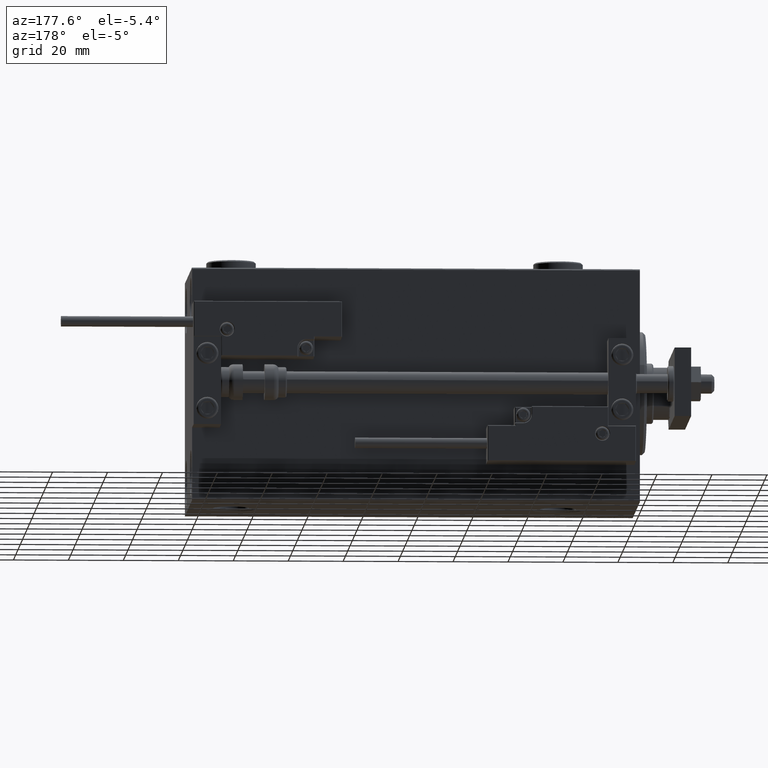
[diagram: clean part render]
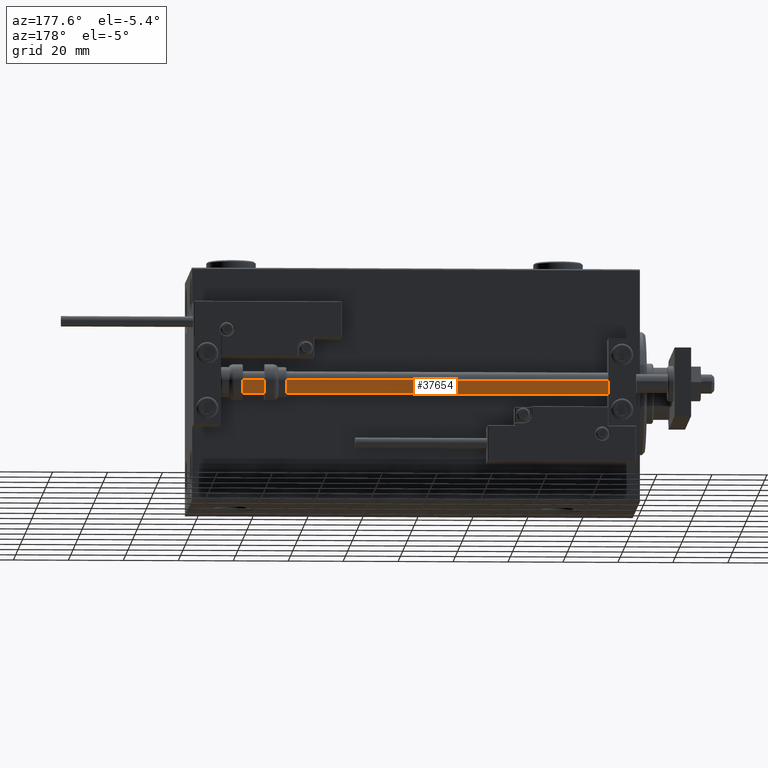
[diagram: same view with one face highlighted and labeled with its STEP entity id]
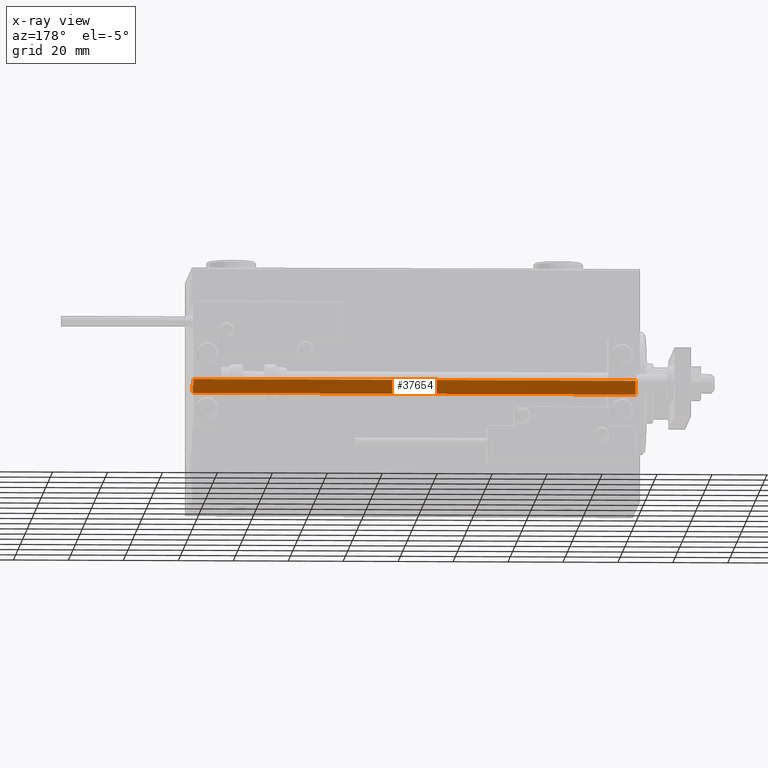
[diagram: x-ray of the same camera — body ghosted, the highlighted face saturated]
A machine part, auxiliary view. The second image highlights one B-rep face of the part: STEP entity #37654.
The next image is the same camera in x-ray: the body ghosted, the highlighted face saturated — about 0% of this face is hidden behind the body in this view.
In plain terms, the highlighted cylindrical surface (edge-blend (fillet) strip) has radius 4 mm, axis along (-1, 0, 0).
Its self-contained STEP definition (entity closure, byte-faithful):
#49 = CARTESIAN_POINT ( 'NONE',  ( 4.000000000000000000, 4.898587196589412829E-16, 2.000000000000029310 ) ) ;
#372 = CARTESIAN_POINT ( 'NONE',  ( 0.000000000000000000, 0.000000000000000000, 163.0000000000000000 ) ) ;
#1808 = ORIENTED_EDGE ( 'NONE', *, *, #28505, .T. ) ;
#4698 = EDGE_CURVE ( 'NONE', #32159, #33030, #10355, .T. ) ;
#6085 = CARTESIAN_POINT ( 'NONE',  ( -4.000000000000000000, 0.000000000000000000, 163.0000000000000000 ) ) ;
#9293 = EDGE_CURVE ( 'NONE', #31018, #32159, #46904, .T. ) ;
#9383 = DIRECTION ( 'NONE',  ( 1.000000000000000000, 0.000000000000000000, 0.000000000000000000 ) ) ;
#10355 = LINE ( 'NONE', #17419, #44372 ) ;
#10605 = CARTESIAN_POINT ( 'NONE',  ( 0.000000000000000000, 0.000000000000000000, 2.000000000000029310 ) ) ;
#12743 = CIRCLE ( 'NONE', #33571, 4.000000000000000000 ) ;
#13312 = DIRECTION ( 'NONE',  ( 0.000000000000000000, 0.000000000000000000, 1.000000000000000000 ) ) ;
#16439 = CARTESIAN_POINT ( 'NONE',  ( 0.000000000000000000, 0.000000000000000000, 163.0000000000000000 ) ) ;
#17290 = DIRECTION ( 'NONE',  ( -0.000000000000000000, -0.000000000000000000, -1.000000000000000000 ) ) ;
#17419 = CARTESIAN_POINT ( 'NONE',  ( 4.000000000000000000, 4.898587196589412829E-16, 163.0000000000000000 ) ) ;
#20021 = AXIS2_PLACEMENT_3D ( 'NONE', #372, #17290, #44431 ) ;
#20275 = EDGE_LOOP ( 'NONE', ( #28222, #28003, #1808, #25656 ) ) ;
#21991 = DIRECTION ( 'NONE',  ( -0.000000000000000000, -0.000000000000000000, -1.000000000000000000 ) ) ;
#24089 = CYLINDRICAL_SURFACE ( 'NONE', #20021, 4.000000000000000000 ) ;
#24862 = FACE_OUTER_BOUND ( 'NONE', #20275, .T. ) ;
#25656 = ORIENTED_EDGE ( 'NONE', *, *, #43860, .T. ) ;
#25908 = LINE ( 'NONE', #6085, #44096 ) ;
#27035 = DIRECTION ( 'NONE',  ( 1.000000000000000000, 0.000000000000000000, 0.000000000000000000 ) ) ;
#27462 = CARTESIAN_POINT ( 'NONE',  ( -4.000000000000000000, 0.000000000000000000, 163.0000000000000000 ) ) ;
#28003 = ORIENTED_EDGE ( 'NONE', *, *, #9293, .F. ) ;
#28222 = ORIENTED_EDGE ( 'NONE', *, *, #4698, .F. ) ;
#28505 = EDGE_CURVE ( 'NONE', #31018, #46238, #25908, .T. ) ;
#30162 = DIRECTION ( 'NONE',  ( -0.000000000000000000, -0.000000000000000000, 1.000000000000000000 ) ) ;
#31018 = VERTEX_POINT ( 'NONE', #27462 ) ;
#31028 = AXIS2_PLACEMENT_3D ( 'NONE', #16439, #13312, #9383 ) ;
#32159 = VERTEX_POINT ( 'NONE', #41077 ) ;
#33030 = VERTEX_POINT ( 'NONE', #49 ) ;
#33571 = AXIS2_PLACEMENT_3D ( 'NONE', #10605, #30162, #27035 ) ;
#37654 = ADVANCED_FACE ( 'NONE', ( #24862 ), #24089, .T. ) ;
#41077 = CARTESIAN_POINT ( 'NONE',  ( 4.000000000000000000, 4.898587196589412829E-16, 163.0000000000000000 ) ) ;
#43860 = EDGE_CURVE ( 'NONE', #46238, #33030, #12743, .T. ) ;
#44096 = VECTOR ( 'NONE', #21991, 1000.000000000000000 ) ;
#44372 = VECTOR ( 'NONE', #49239, 1000.000000000000000 ) ;
#44431 = DIRECTION ( 'NONE',  ( -1.000000000000000000, 0.000000000000000000, 0.000000000000000000 ) ) ;
#46238 = VERTEX_POINT ( 'NONE', #47287 ) ;
#46904 = CIRCLE ( 'NONE', #31028, 4.000000000000000000 ) ;
#47287 = CARTESIAN_POINT ( 'NONE',  ( -4.000000000000000000, 0.000000000000000000, 2.000000000000029310 ) ) ;
#49239 = DIRECTION ( 'NONE',  ( -0.000000000000000000, -0.000000000000000000, -1.000000000000000000 ) ) ;